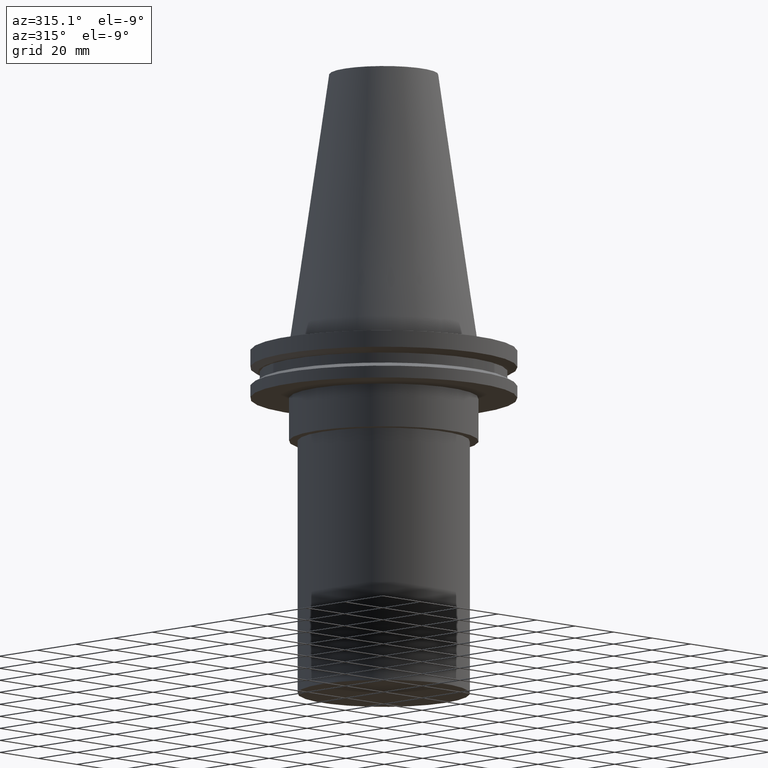
[diagram: clean part render]
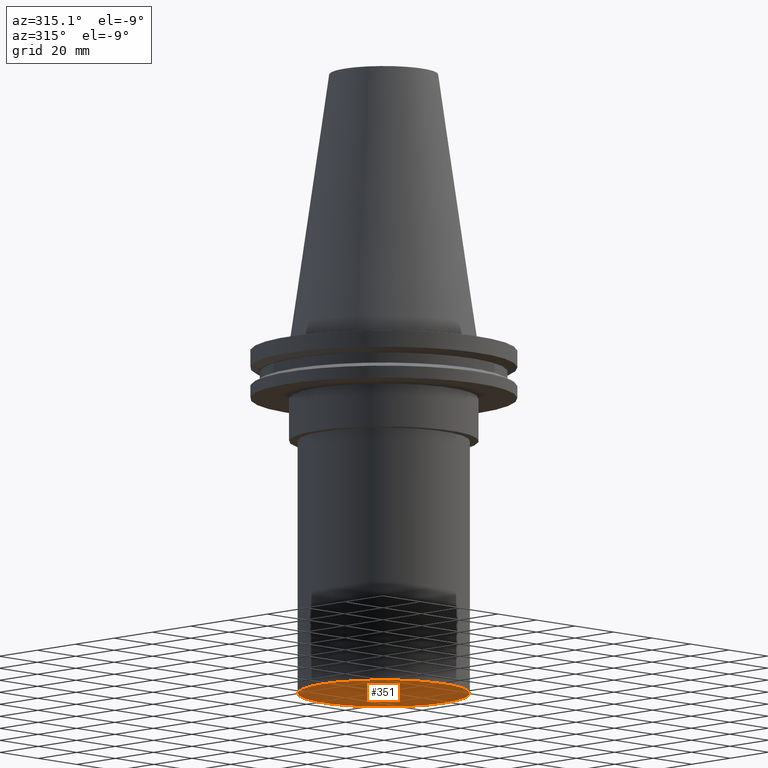
[diagram: same view with one face highlighted and labeled with its STEP entity id]
A machine part, auxiliary view. The second image highlights one B-rep face of the part: STEP entity #351.
In plain terms, the highlighted planar face has unit normal (0, -0, 1).
Its self-contained STEP definition (entity closure, byte-faithful):
#8 = CARTESIAN_POINT ( 'NONE',  ( 0.000000000000000000, 0.000000000000000000, -129.0000000000000000 ) ) ;
#10 = DIRECTION ( 'NONE',  ( 0.000000000000000000, -0.000000000000000000, 1.000000000000000000 ) ) ;
#13 = FACE_OUTER_BOUND ( 'NONE', #202, .T. ) ;
#32 = AXIS2_PLACEMENT_3D ( 'NONE', #8, #57, #314 ) ;
#57 = DIRECTION ( 'NONE',  ( -0.000000000000000000, -0.000000000000000000, 1.000000000000000000 ) ) ;
#153 = VERTEX_POINT ( 'NONE', #184 ) ;
#154 = CIRCLE ( 'NONE', #32, 31.75000000000000000 ) ;
#184 = CARTESIAN_POINT ( 'NONE',  ( 31.75000000000000000, 0.000000000000000000, -129.0000000000000000 ) ) ;
#202 = EDGE_LOOP ( 'NONE', ( #277 ) ) ;
#277 = ORIENTED_EDGE ( 'NONE', *, *, #309, .F. ) ;
#285 = DIRECTION ( 'NONE',  ( 1.000000000000000000, 0.000000000000000000, 0.000000000000000000 ) ) ;
#307 = CARTESIAN_POINT ( 'NONE',  ( 0.000000000000000000, 31.75000000000000000, -129.0000000000000000 ) ) ;
#309 = EDGE_CURVE ( 'NONE', #153, #153, #154, .T. ) ;
#314 = DIRECTION ( 'NONE',  ( 1.000000000000000000, 0.000000000000000000, 0.000000000000000000 ) ) ;
#348 = PLANE ( 'NONE',  #391 ) ;
#351 = ADVANCED_FACE ( 'NONE', ( #13 ), #348, .F. ) ;
#391 = AXIS2_PLACEMENT_3D ( 'NONE', #307, #10, #285 ) ;